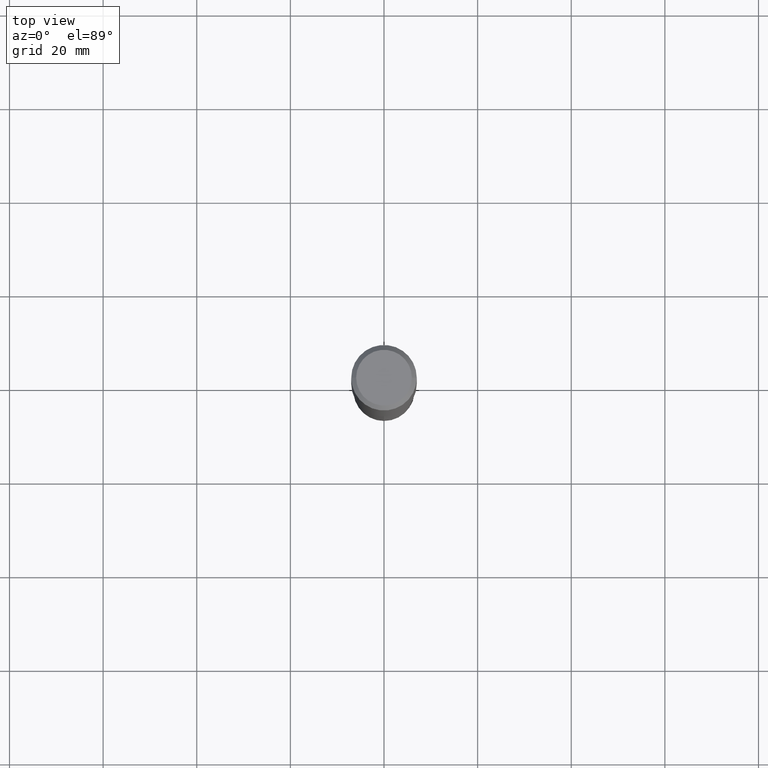
[diagram: clean part render]
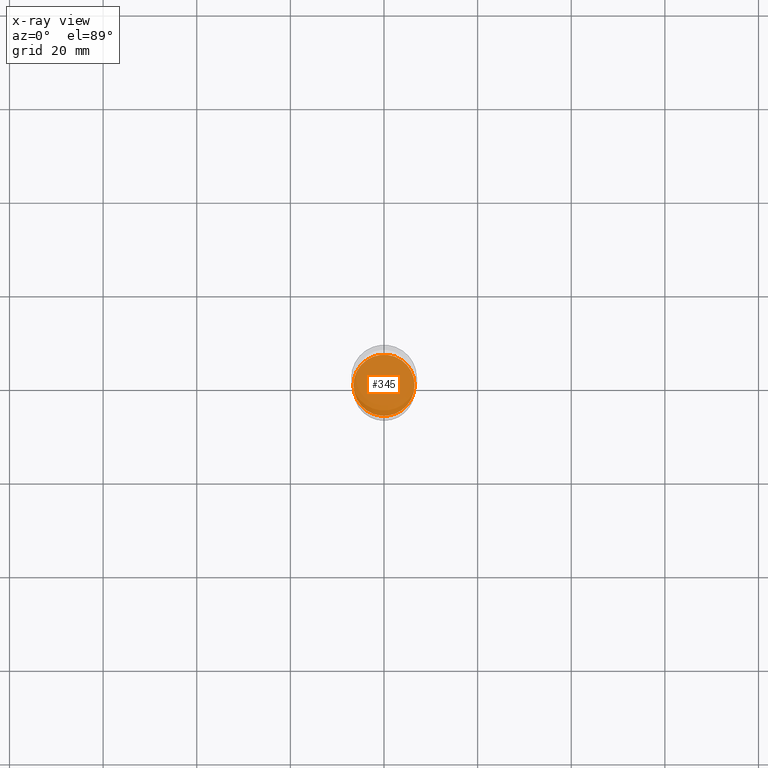
[diagram: x-ray — body ghosted, one internal face saturated and labeled with its STEP entity id]
A machine part, top view, then the same camera in x-ray: the body is ghosted and one INTERNAL B-rep face — a face not visible from any outside direction — is saturated and labeled: STEP entity #345.
In plain terms, the highlighted planar face has unit normal (-0, 0, 1).
Its self-contained STEP definition (entity closure, byte-faithful):
#7 = CARTESIAN_POINT ( 'NONE',  ( 9.051658239213665252E-29, -1.292336902759401938E-14, -3.701400000000000023 ) ) ;
#41 = CARTESIAN_POINT ( 'NONE',  ( 9.051658239213665252E-29, -1.292336902759401938E-14, -3.701400000000000023 ) ) ;
#82 = DIRECTION ( 'NONE',  ( -2.438088387897960049E-29, 3.491481338843145188E-15, 1.000000000000000000 ) ) ;
#85 = CIRCLE ( 'NONE', #162, 0.2572999999999999732 ) ;
#110 = EDGE_LOOP ( 'NONE', ( #324, #436 ) ) ;
#112 = FACE_OUTER_BOUND ( 'NONE', #110, .T. ) ;
#118 = CIRCLE ( 'NONE', #331, 0.2572999999999999732 ) ;
#140 = PLANE ( 'NONE',  #321 ) ;
#142 = VERTEX_POINT ( 'NONE', #388 ) ;
#145 = CARTESIAN_POINT ( 'NONE',  ( -0.2572999999999999732, -1.109249334130917217E-14, -3.701400000000000023 ) ) ;
#147 = DIRECTION ( 'NONE',  ( -2.445468806185136597E-29, 3.491481338843145583E-15, 1.000000000000000000 ) ) ;
#162 = AXIS2_PLACEMENT_3D ( 'NONE', #349, #204, #353 ) ;
#204 = DIRECTION ( 'NONE',  ( -2.445468806185136597E-29, 3.491481338843145583E-15, 1.000000000000000000 ) ) ;
#208 = DIRECTION ( 'NONE',  ( 1.000000000000000000, -6.982962677686265922E-15, 4.876176775795935793E-29 ) ) ;
#209 = EDGE_CURVE ( 'NONE', #365, #142, #85, .T. ) ;
#293 = DIRECTION ( 'NONE',  ( 1.000000000000000000, -6.982962677686269866E-15, 0.000000000000000000 ) ) ;
#321 = AXIS2_PLACEMENT_3D ( 'NONE', #7, #82, #208 ) ;
#324 = ORIENTED_EDGE ( 'NONE', *, *, #372, .F. ) ;
#331 = AXIS2_PLACEMENT_3D ( 'NONE', #41, #147, #293 ) ;
#345 = ADVANCED_FACE ( 'NONE', ( #112 ), #140, .F. ) ;
#349 = CARTESIAN_POINT ( 'NONE',  ( 9.051658239213665252E-29, -1.292336902759401938E-14, -3.701400000000000023 ) ) ;
#353 = DIRECTION ( 'NONE',  ( 1.000000000000000000, -6.982962677686269866E-15, 0.000000000000000000 ) ) ;
#365 = VERTEX_POINT ( 'NONE', #145 ) ;
#372 = EDGE_CURVE ( 'NONE', #142, #365, #118, .T. ) ;
#388 = CARTESIAN_POINT ( 'NONE',  ( 0.2572999999999999732, -1.472008532456269554E-14, -3.701400000000000023 ) ) ;
#436 = ORIENTED_EDGE ( 'NONE', *, *, #209, .F. ) ;